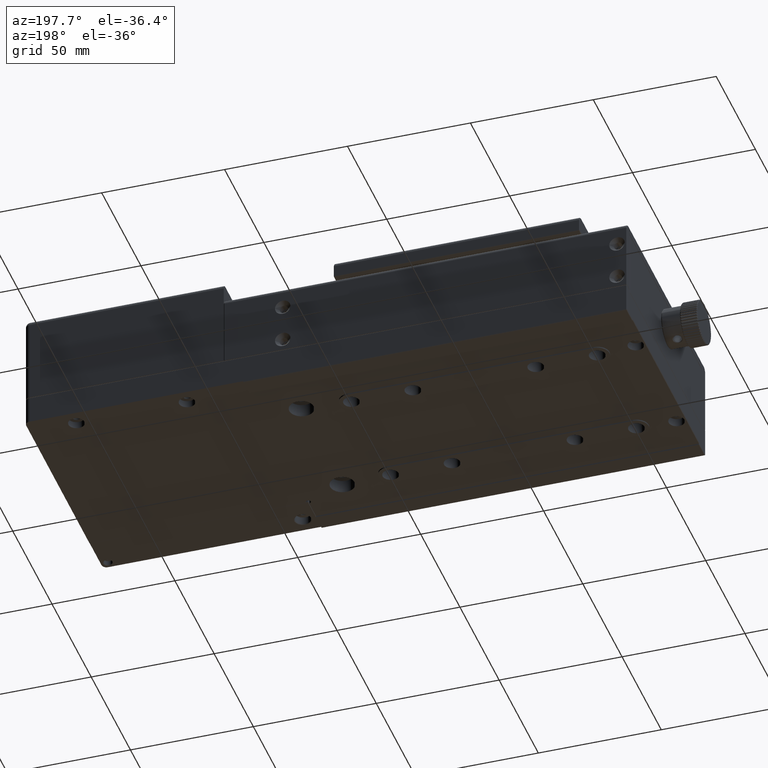
[diagram: clean part render]
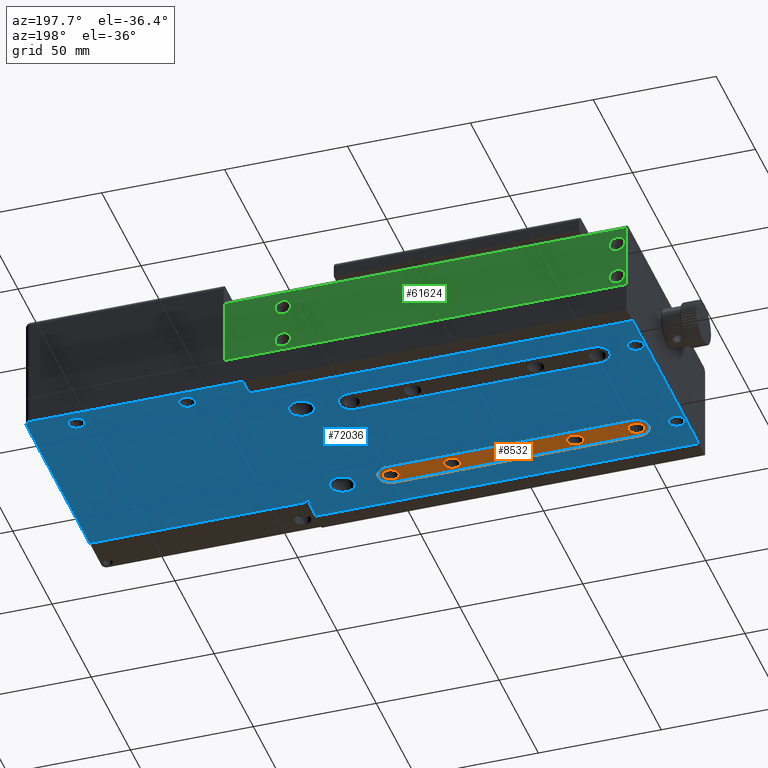
[diagram: same view with three faces highlighted in distinct colors, each labeled with its STEP entity id]
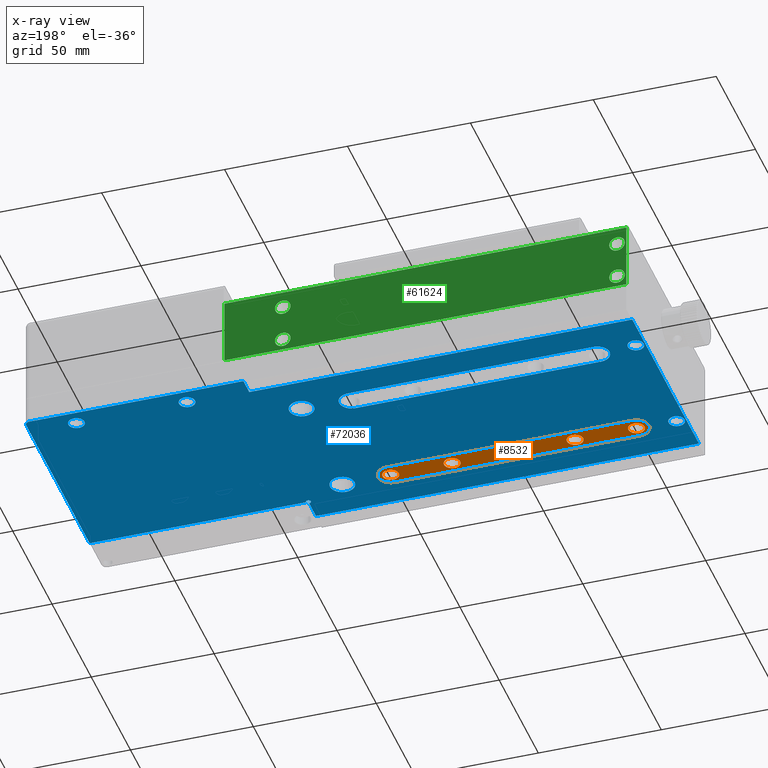
[diagram: x-ray of the same camera — body ghosted, the three highlighted faces saturated]
A machine part, auxiliary view with three faces highlighted in distinct colors.
The next image is the same camera in x-ray (body ghosted, the three faces saturated) — at least one of them is partly hidden behind the body in this view.
Their STEP definitions:

[orange] entity #8532 — the highlighted planar face has unit normal (0, 0, -1).
#572 = FACE_BOUND ( 'NONE', #5818, .T. ) ;
#2161 = CARTESIAN_POINT ( 'NONE',  ( -145.6607912002899923, -15.00575141257550094, -5.000000000000000000 ) ) ;
#2681 = ORIENTED_EDGE ( 'NONE', *, *, #47305, .F. ) ;
#3518 = DIRECTION ( 'NONE',  ( 0.000000000000000000, 0.000000000000000000, -1.000000000000000000 ) ) ;
#4045 = VERTEX_POINT ( 'NONE', #7858 ) ;
#5338 = FACE_BOUND ( 'NONE', #51825, .T. ) ;
#5442 = EDGE_CURVE ( 'NONE', #21860, #38430, #61975, .T. ) ;
#5818 = EDGE_LOOP ( 'NONE', ( #55989, #16234 ) ) ;
#5910 = EDGE_CURVE ( 'NONE', #47031, #4045, #45668, .T. ) ;
#6084 = CARTESIAN_POINT ( 'NONE',  ( -77.26079120029010028, -15.00575141257550094, -5.000000000000000000 ) ) ;
#6204 = CARTESIAN_POINT ( 'NONE',  ( -123.9607912002900036, -15.00575141257550094, -5.000000000000000000 ) ) ;
#6422 = CARTESIAN_POINT ( 'NONE',  ( -43.96079120029010312, -15.00575141257550094, -5.000000000000000000 ) ) ;
#6906 = CARTESIAN_POINT ( 'NONE',  ( -48.96079120029010312, -20.00575141257549916, -5.000000000000000000 ) ) ;
#7356 = EDGE_CURVE ( 'NONE', #27232, #14431, #15425, .T. ) ;
#7370 = CARTESIAN_POINT ( 'NONE',  ( -127.2607912002899866, -15.00575141257550094, -5.000000000000000000 ) ) ;
#7858 = CARTESIAN_POINT ( 'NONE',  ( -152.2607912002899866, -15.00575141257550094, -5.000000000000000000 ) ) ;
#8532 = ADVANCED_FACE ( 'NONE', ( #572, #11193, #5338, #10832, #67914 ), #51415, .T. ) ;
#9310 = ORIENTED_EDGE ( 'NONE', *, *, #52601, .T. ) ;
#9331 = AXIS2_PLACEMENT_3D ( 'NONE', #53234, #37115, #32367 ) ;
#10832 = FACE_BOUND ( 'NONE', #42816, .T. ) ;
#10947 = CARTESIAN_POINT ( 'NONE',  ( -148.9607912002899752, -15.00575141257550094, -5.000000000000000000 ) ) ;
#11106 = VERTEX_POINT ( 'NONE', #56538 ) ;
#11193 = FACE_BOUND ( 'NONE', #58707, .T. ) ;
#11863 = ORIENTED_EDGE ( 'NONE', *, *, #42855, .F. ) ;
#13083 = DIRECTION ( 'NONE',  ( 0.000000000000000000, 0.000000000000000000, -1.000000000000000000 ) ) ;
#13720 = CIRCLE ( 'NONE', #14894, 4.999999999999997335 ) ;
#13845 = CARTESIAN_POINT ( 'NONE',  ( -45.66079120029010596, -15.00575141257550094, -5.000000000000000000 ) ) ;
#14431 = VERTEX_POINT ( 'NONE', #38433 ) ;
#14894 = AXIS2_PLACEMENT_3D ( 'NONE', #64780, #66949, #26719 ) ;
#15425 = CIRCLE ( 'NONE', #34126, 3.299999999999997158 ) ;
#16234 = ORIENTED_EDGE ( 'NONE', *, *, #36578, .F. ) ;
#16283 = DIRECTION ( 'NONE',  ( 1.000000000000000000, -2.775557561562890365E-16, 0.000000000000000000 ) ) ;
#16661 = LINE ( 'NONE', #32769, #71688 ) ;
#17094 = CARTESIAN_POINT ( 'NONE',  ( -123.9607912002900036, -15.00575141257550094, -5.000000000000000000 ) ) ;
#17841 = CARTESIAN_POINT ( 'NONE',  ( -148.9607912002899752, -10.00575141257546008, -5.000000000000000000 ) ) ;
#18857 = AXIS2_PLACEMENT_3D ( 'NONE', #64183, #69327, #19574 ) ;
#19185 = DIRECTION ( 'NONE',  ( -1.000000000000000000, 0.000000000000000000, 0.000000000000000000 ) ) ;
#19574 = DIRECTION ( 'NONE',  ( -1.000000000000000000, 0.000000000000000000, 0.000000000000000000 ) ) ;
#21591 = DIRECTION ( 'NONE',  ( -1.000000000000000000, 0.000000000000000000, 0.000000000000000000 ) ) ;
#21860 = VERTEX_POINT ( 'NONE', #7370 ) ;
#22833 = ORIENTED_EDGE ( 'NONE', *, *, #41723, .T. ) ;
#23105 = ORIENTED_EDGE ( 'NONE', *, *, #27687, .F. ) ;
#23181 = CARTESIAN_POINT ( 'NONE',  ( -48.96079120029010312, -15.00575141257550094, -5.000000000000000000 ) ) ;
#23264 = CARTESIAN_POINT ( 'NONE',  ( -148.9607912002899752, -15.00575141257550094, -5.000000000000000000 ) ) ;
#24437 = CARTESIAN_POINT ( 'NONE',  ( -48.96079120029010312, -15.00575141257550094, -5.000000000000000000 ) ) ;
#24933 = LINE ( 'NONE', #30026, #59473 ) ;
#24999 = VERTEX_POINT ( 'NONE', #6422 ) ;
#26719 = DIRECTION ( 'NONE',  ( -1.000000000000000000, 0.000000000000000000, 0.000000000000000000 ) ) ;
#26770 = EDGE_CURVE ( 'NONE', #71446, #58588, #24933, .T. ) ;
#26943 = CIRCLE ( 'NONE', #51478, 4.999999999999997335 ) ;
#27232 = VERTEX_POINT ( 'NONE', #13845 ) ;
#27441 = DIRECTION ( 'NONE',  ( 0.000000000000000000, 0.000000000000000000, -1.000000000000000000 ) ) ;
#27687 = EDGE_CURVE ( 'NONE', #40221, #29126, #32738, .T. ) ;
#28250 = CIRCLE ( 'NONE', #36431, 3.299999999999997158 ) ;
#28402 = AXIS2_PLACEMENT_3D ( 'NONE', #23181, #45472, #60518 ) ;
#28453 = DIRECTION ( 'NONE',  ( -1.000000000000000000, 0.000000000000000000, 0.000000000000000000 ) ) ;
#28538 = DIRECTION ( 'NONE',  ( 0.000000000000000000, 0.000000000000000000, -1.000000000000000000 ) ) ;
#29114 = DIRECTION ( 'NONE',  ( 0.000000000000000000, 0.000000000000000000, -1.000000000000000000 ) ) ;
#29126 = VERTEX_POINT ( 'NONE', #6084 ) ;
#30026 = CARTESIAN_POINT ( 'NONE',  ( -148.9607912002899752, -20.00575141257549916, -5.000000000000000000 ) ) ;
#30386 = DIRECTION ( 'NONE',  ( -1.000000000000000000, 0.000000000000000000, 0.000000000000000000 ) ) ;
#30501 = CARTESIAN_POINT ( 'NONE',  ( -148.9607912002899752, -15.00575141257550094, -5.000000000000000000 ) ) ;
#30994 = DIRECTION ( 'NONE',  ( -1.000000000000000000, 0.000000000000000000, 0.000000000000000000 ) ) ;
#31944 = ORIENTED_EDGE ( 'NONE', *, *, #47600, .T. ) ;
#32209 = AXIS2_PLACEMENT_3D ( 'NONE', #30501, #47328, #19185 ) ;
#32367 = DIRECTION ( 'NONE',  ( -1.000000000000000000, 0.000000000000000000, 0.000000000000000000 ) ) ;
#32430 = DIRECTION ( 'NONE',  ( -1.000000000000000000, 0.000000000000000000, 0.000000000000000000 ) ) ;
#32738 = CIRCLE ( 'NONE', #9331, 3.299999999999997158 ) ;
#32769 = CARTESIAN_POINT ( 'NONE',  ( -148.9607912002899752, -10.00575141257546008, -5.000000000000000000 ) ) ;
#34126 = AXIS2_PLACEMENT_3D ( 'NONE', #70137, #3518, #32430 ) ;
#34288 = DIRECTION ( 'NONE',  ( 0.000000000000000000, 0.000000000000000000, -1.000000000000000000 ) ) ;
#36431 = AXIS2_PLACEMENT_3D ( 'NONE', #10947, #27441, #21591 ) ;
#36578 = EDGE_CURVE ( 'NONE', #14431, #27232, #50587, .T. ) ;
#37115 = DIRECTION ( 'NONE',  ( 0.000000000000000000, 0.000000000000000000, -1.000000000000000000 ) ) ;
#37610 = CARTESIAN_POINT ( 'NONE',  ( -70.66079120029010596, -15.00575141257550094, -5.000000000000000000 ) ) ;
#38248 = CARTESIAN_POINT ( 'NONE',  ( -73.96079120029010312, -15.00575141257550094, -5.000000000000000000 ) ) ;
#38430 = VERTEX_POINT ( 'NONE', #59995 ) ;
#38433 = CARTESIAN_POINT ( 'NONE',  ( -52.26079120029010028, -15.00575141257550094, -5.000000000000000000 ) ) ;
#40221 = VERTEX_POINT ( 'NONE', #37610 ) ;
#40233 = CIRCLE ( 'NONE', #32209, 5.000000000000004441 ) ;
#40663 = EDGE_CURVE ( 'NONE', #29126, #40221, #65360, .T. ) ;
#40680 = EDGE_LOOP ( 'NONE', ( #59256, #31944, #22833, #9310, #69898 ) ) ;
#41723 = EDGE_CURVE ( 'NONE', #11106, #24999, #26943, .T. ) ;
#42816 = EDGE_LOOP ( 'NONE', ( #23105, #60812 ) ) ;
#42855 = EDGE_CURVE ( 'NONE', #4045, #47031, #28250, .T. ) ;
#43008 = DIRECTION ( 'NONE',  ( 0.000000000000000000, 0.000000000000000000, -1.000000000000000000 ) ) ;
#44474 = AXIS2_PLACEMENT_3D ( 'NONE', #6204, #28538, #50854 ) ;
#44747 = AXIS2_PLACEMENT_3D ( 'NONE', #17094, #34288, #28453 ) ;
#45472 = DIRECTION ( 'NONE',  ( 0.000000000000000000, 0.000000000000000000, -1.000000000000000000 ) ) ;
#45668 = CIRCLE ( 'NONE', #18857, 3.299999999999997158 ) ;
#47031 = VERTEX_POINT ( 'NONE', #2161 ) ;
#47305 = EDGE_CURVE ( 'NONE', #38430, #21860, #48244, .T. ) ;
#47328 = DIRECTION ( 'NONE',  ( 0.000000000000000000, 0.000000000000000000, -1.000000000000000000 ) ) ;
#47600 = EDGE_CURVE ( 'NONE', #48525, #11106, #16661, .T. ) ;
#48244 = CIRCLE ( 'NONE', #44747, 3.300000000000011369 ) ;
#48525 = VERTEX_POINT ( 'NONE', #17841 ) ;
#50587 = CIRCLE ( 'NONE', #28402, 3.299999999999997158 ) ;
#50854 = DIRECTION ( 'NONE',  ( -1.000000000000000000, 0.000000000000000000, 0.000000000000000000 ) ) ;
#51415 = PLANE ( 'NONE',  #55028 ) ;
#51478 = AXIS2_PLACEMENT_3D ( 'NONE', #24437, #13083, #30994 ) ;
#51825 = EDGE_LOOP ( 'NONE', ( #53661, #11863 ) ) ;
#52601 = EDGE_CURVE ( 'NONE', #24999, #71446, #13720, .T. ) ;
#53234 = CARTESIAN_POINT ( 'NONE',  ( -73.96079120029010312, -15.00575141257550094, -5.000000000000000000 ) ) ;
#53661 = ORIENTED_EDGE ( 'NONE', *, *, #5910, .F. ) ;
#55028 = AXIS2_PLACEMENT_3D ( 'NONE', #23264, #29114, #72296 ) ;
#55989 = ORIENTED_EDGE ( 'NONE', *, *, #7356, .F. ) ;
#56538 = CARTESIAN_POINT ( 'NONE',  ( -48.96079120029010312, -10.00575141257547962, -5.000000000000000000 ) ) ;
#56763 = CARTESIAN_POINT ( 'NONE',  ( -148.9607912002899752, -20.00575141257549916, -5.000000000000000000 ) ) ;
#57803 = ORIENTED_EDGE ( 'NONE', *, *, #5442, .F. ) ;
#58588 = VERTEX_POINT ( 'NONE', #56763 ) ;
#58707 = EDGE_LOOP ( 'NONE', ( #2681, #57803 ) ) ;
#59256 = ORIENTED_EDGE ( 'NONE', *, *, #70751, .T. ) ;
#59473 = VECTOR ( 'NONE', #30386, 1000.000000000000000 ) ;
#59523 = AXIS2_PLACEMENT_3D ( 'NONE', #38248, #43008, #65328 ) ;
#59995 = CARTESIAN_POINT ( 'NONE',  ( -120.6607912002900065, -15.00575141257550094, -5.000000000000000000 ) ) ;
#60518 = DIRECTION ( 'NONE',  ( -1.000000000000000000, 0.000000000000000000, 0.000000000000000000 ) ) ;
#60812 = ORIENTED_EDGE ( 'NONE', *, *, #40663, .F. ) ;
#61975 = CIRCLE ( 'NONE', #44474, 3.300000000000011369 ) ;
#64183 = CARTESIAN_POINT ( 'NONE',  ( -148.9607912002899752, -15.00575141257550094, -5.000000000000000000 ) ) ;
#64780 = CARTESIAN_POINT ( 'NONE',  ( -48.96079120029010312, -15.00575141257550094, -5.000000000000000000 ) ) ;
#65328 = DIRECTION ( 'NONE',  ( -1.000000000000000000, 0.000000000000000000, 0.000000000000000000 ) ) ;
#65360 = CIRCLE ( 'NONE', #59523, 3.299999999999997158 ) ;
#66949 = DIRECTION ( 'NONE',  ( 0.000000000000000000, 0.000000000000000000, -1.000000000000000000 ) ) ;
#67914 = FACE_OUTER_BOUND ( 'NONE', #40680, .T. ) ;
#69327 = DIRECTION ( 'NONE',  ( 0.000000000000000000, 0.000000000000000000, -1.000000000000000000 ) ) ;
#69898 = ORIENTED_EDGE ( 'NONE', *, *, #26770, .T. ) ;
#70137 = CARTESIAN_POINT ( 'NONE',  ( -48.96079120029010312, -15.00575141257550094, -5.000000000000000000 ) ) ;
#70751 = EDGE_CURVE ( 'NONE', #58588, #48525, #40233, .T. ) ;
#71446 = VERTEX_POINT ( 'NONE', #6906 ) ;
#71688 = VECTOR ( 'NONE', #16283, 1000.000000000000000 ) ;
#72296 = DIRECTION ( 'NONE',  ( 0.000000000000000000, -1.000000000000000000, 0.000000000000000000 ) ) ;

[blue] entity #72036 — the highlighted planar face has unit normal (0, 0, -1).
#290 = DIRECTION ( 'NONE',  ( 0.000000000000000000, 0.000000000000000000, -1.000000000000000000 ) ) ;
#370 = LINE ( 'NONE', #33310, #38080 ) ;
#1102 = CIRCLE ( 'NONE', #32660, 3.249999999999999556 ) ;
#1150 = CARTESIAN_POINT ( 'NONE',  ( -12.96079120029014042, -22.80575141257549987, -4.500000000000000000 ) ) ;
#1430 = ORIENTED_EDGE ( 'NONE', *, *, #39142, .F. ) ;
#1717 = DIRECTION ( 'NONE',  ( -1.000000000000000000, 0.000000000000000000, 0.000000000000000000 ) ) ;
#2078 = EDGE_CURVE ( 'NONE', #8837, #31264, #35640, .T. ) ;
#2158 = CARTESIAN_POINT ( 'NONE',  ( -28.96079120029009957, 35.99424858742454347, -4.500000000000000000 ) ) ;
#2431 = VECTOR ( 'NONE', #14072, 1000.000000000000000 ) ;
#2548 = CIRCLE ( 'NONE', #21135, 4.999999999999997335 ) ;
#3005 = DIRECTION ( 'NONE',  ( -1.000000000000000000, 0.000000000000000000, 0.000000000000000000 ) ) ;
#3339 = EDGE_CURVE ( 'NONE', #40353, #46669, #35911, .T. ) ;
#3416 = DIRECTION ( 'NONE',  ( 0.000000000000000000, 0.000000000000000000, -1.000000000000000000 ) ) ;
#3483 = AXIS2_PLACEMENT_3D ( 'NONE', #41867, #54547, #30900 ) ;
#3643 = EDGE_CURVE ( 'NONE', #50636, #46669, #370, .T. ) ;
#4209 = CARTESIAN_POINT ( 'NONE',  ( 15.28920879970989866, 53.49424858742450084, -4.500000000000000000 ) ) ;
#4240 = EDGE_CURVE ( 'NONE', #34663, #37832, #37367, .T. ) ;
#4475 = DIRECTION ( 'NONE',  ( -1.000000000000000000, 0.000000000000000000, 0.000000000000000000 ) ) ;
#4513 = VERTEX_POINT ( 'NONE', #58170 ) ;
#5206 = FACE_BOUND ( 'NONE', #43208, .T. ) ;
#5287 = CARTESIAN_POINT ( 'NONE',  ( 76.03920879970989688, -22.80575141257549987, -4.500000000000000000 ) ) ;
#5317 = CIRCLE ( 'NONE', #17022, 0.9999999999999991118 ) ;
#5545 = EDGE_LOOP ( 'NONE', ( #64815, #32088 ) ) ;
#5785 = ORIENTED_EDGE ( 'NONE', *, *, #59780, .F. ) ;
#5884 = VERTEX_POINT ( 'NONE', #14761 ) ;
#6016 = DIRECTION ( 'NONE',  ( 1.000000000000000000, -1.040834085586083887E-16, 0.000000000000000000 ) ) ;
#6117 = CARTESIAN_POINT ( 'NONE',  ( -164.9607912002900036, -16.00575141257549916, -4.500000000000000000 ) ) ;
#6172 = CARTESIAN_POINT ( 'NONE',  ( 12.03920879970988089, 53.49424858742450084, -4.500000000000000000 ) ) ;
#6303 = VERTEX_POINT ( 'NONE', #18753 ) ;
#7002 = DIRECTION ( 'NONE',  ( -1.000000000000000000, 0.000000000000000000, 0.000000000000000000 ) ) ;
#7023 = DIRECTION ( 'NONE',  ( 0.000000000000000000, 0.000000000000000000, -1.000000000000000000 ) ) ;
#7527 = ORIENTED_EDGE ( 'NONE', *, *, #21486, .F. ) ;
#7641 = AXIS2_PLACEMENT_3D ( 'NONE', #6172, #29228, #33629 ) ;
#8389 = DIRECTION ( 'NONE',  ( 0.000000000000000000, 0.000000000000000000, 1.000000000000000000 ) ) ;
#8400 = CIRCLE ( 'NONE', #37557, 5.000000000000004441 ) ;
#8837 = VERTEX_POINT ( 'NONE', #18411 ) ;
#8871 = CARTESIAN_POINT ( 'NONE',  ( -12.96079120029014042, -23.80575141257549632, -4.500000000000000000 ) ) ;
#9142 = ORIENTED_EDGE ( 'NONE', *, *, #54209, .T. ) ;
#9420 = CIRCLE ( 'NONE', #17608, 0.9999999999999991118 ) ;
#9553 = DIRECTION ( 'NONE',  ( 0.000000000000000000, 0.000000000000000000, 1.000000000000000000 ) ) ;
#9801 = AXIS2_PLACEMENT_3D ( 'NONE', #69690, #3416, #48063 ) ;
#9944 = AXIS2_PLACEMENT_3D ( 'NONE', #52001, #12506, #46890 ) ;
#10108 = CARTESIAN_POINT ( 'NONE',  ( -168.7607912002899866, -32.50575141257549916, -4.500000000000000000 ) ) ;
#10312 = VECTOR ( 'NONE', #10504, 1000.000000000000000 ) ;
#10323 = CARTESIAN_POINT ( 'NONE',  ( -164.9607912002900036, -16.00575141257549916, -4.500000000000000000 ) ) ;
#10504 = DIRECTION ( 'NONE',  ( -1.000000000000000000, 1.387778780781445922E-16, 0.000000000000000000 ) ) ;
#10952 = VERTEX_POINT ( 'NONE', #10108 ) ;
#11060 = FACE_OUTER_BOUND ( 'NONE', #68251, .T. ) ;
#11234 = CARTESIAN_POINT ( 'NONE',  ( -148.9607912002899752, 34.99424858742449373, -4.500000000000000000 ) ) ;
#11255 = CARTESIAN_POINT ( 'NONE',  ( -28.96079120029009957, -16.00575141257549916, -4.500000000000000000 ) ) ;
#11303 = CARTESIAN_POINT ( 'NONE',  ( -148.9607912002899752, -20.00575141257549916, -4.500000000000000000 ) ) ;
#11415 = CARTESIAN_POINT ( 'NONE',  ( -168.9607912002899752, 59.99424858742450084, -4.500000000000000000 ) ) ;
#11632 = EDGE_CURVE ( 'NONE', #24472, #5884, #5317, .T. ) ;
#11789 = CARTESIAN_POINT ( 'NONE',  ( 57.03920879970990399, 53.49424858742450084, -4.500000000000000000 ) ) ;
#11890 = CARTESIAN_POINT ( 'NONE',  ( -168.2107912002899752, 35.99424858742454347, -4.500000000000000000 ) ) ;
#11988 = CARTESIAN_POINT ( 'NONE',  ( -161.7107912002900036, 35.99424858742454347, -4.500000000000000000 ) ) ;
#12135 = CIRCLE ( 'NONE', #9801, 4.999999999999997335 ) ;
#12343 = CARTESIAN_POINT ( 'NONE',  ( 74.03920879970989688, 59.99424858742450084, -4.500000000000000000 ) ) ;
#12506 = DIRECTION ( 'NONE',  ( 0.000000000000000000, 0.000000000000000000, 1.000000000000000000 ) ) ;
#12568 = CARTESIAN_POINT ( 'NONE',  ( 12.03920879970988089, 53.49424858742450084, -4.500000000000000000 ) ) ;
#12754 = CARTESIAN_POINT ( 'NONE',  ( -48.96079120029010312, -10.00575141257547962, -4.500000000000000000 ) ) ;
#13214 = DIRECTION ( 'NONE',  ( -1.000000000000000000, 0.000000000000000000, 0.000000000000000000 ) ) ;
#13250 = CARTESIAN_POINT ( 'NONE',  ( -168.9607912002899752, 59.99424858742450084, -4.500000000000000000 ) ) ;
#13958 = LINE ( 'NONE', #34828, #66434 ) ;
#14072 = DIRECTION ( 'NONE',  ( -1.224646799147351975E-16, 1.000000000000000000, 0.000000000000000000 ) ) ;
#14324 = CARTESIAN_POINT ( 'NONE',  ( 53.78920879970990399, 53.49424858742450084, -4.500000000000000000 ) ) ;
#14761 = CARTESIAN_POINT ( 'NONE',  ( -13.96079120029013865, -22.80575141257549987, -4.500000000000000000 ) ) ;
#15143 = LINE ( 'NONE', #71509, #65561 ) ;
#15698 = CARTESIAN_POINT ( 'NONE',  ( -148.9607912002899752, -10.00575141257546008, -4.500000000000000000 ) ) ;
#16062 = DIRECTION ( 'NONE',  ( -1.000000000000000000, 0.000000000000000000, 0.000000000000000000 ) ) ;
#16086 = CIRCLE ( 'NONE', #60492, 3.250000000000002665 ) ;
#16183 = DIRECTION ( 'NONE',  ( 0.000000000000000000, -1.000000000000000000, 0.000000000000000000 ) ) ;
#17022 = AXIS2_PLACEMENT_3D ( 'NONE', #35210, #46185, #3005 ) ;
#17179 = LINE ( 'NONE', #55594, #66227 ) ;
#17532 = ORIENTED_EDGE ( 'NONE', *, *, #25874, .F. ) ;
#17608 = AXIS2_PLACEMENT_3D ( 'NONE', #1150, #23500, #7002 ) ;
#17756 = DIRECTION ( 'NONE',  ( 0.000000000000000000, 1.000000000000000000, 0.000000000000000000 ) ) ;
#18069 = VERTEX_POINT ( 'NONE', #11890 ) ;
#18411 = CARTESIAN_POINT ( 'NONE',  ( -23.96079120029010312, 35.99424858742454347, -4.500000000000000000 ) ) ;
#18456 = EDGE_CURVE ( 'NONE', #62795, #45612, #66193, .T. ) ;
#18753 = CARTESIAN_POINT ( 'NONE',  ( -48.96079120029010312, -20.00575141257549916, -4.500000000000000000 ) ) ;
#19025 = DIRECTION ( 'NONE',  ( -1.000000000000000000, 0.000000000000000000, 0.000000000000000000 ) ) ;
#19345 = VERTEX_POINT ( 'NONE', #34221 ) ;
#19521 = ORIENTED_EDGE ( 'NONE', *, *, #20493, .T. ) ;
#19825 = DIRECTION ( 'NONE',  ( -1.000000000000000000, 0.000000000000000000, 0.000000000000000000 ) ) ;
#20493 = EDGE_CURVE ( 'NONE', #68274, #57304, #16086, .T. ) ;
#20749 = DIRECTION ( 'NONE',  ( 0.000000000000000000, 0.000000000000000000, -1.000000000000000000 ) ) ;
#20816 = CARTESIAN_POINT ( 'NONE',  ( -168.2107912002899752, -16.00575141257549916, -4.500000000000000000 ) ) ;
#20963 = CIRCLE ( 'NONE', #44298, 3.250000000000002665 ) ;
#21135 = AXIS2_PLACEMENT_3D ( 'NONE', #70864, #20749, #43033 ) ;
#21318 = EDGE_CURVE ( 'NONE', #22994, #51450, #48923, .T. ) ;
#21486 = EDGE_CURVE ( 'NONE', #51450, #19345, #48851, .T. ) ;
#22160 = CARTESIAN_POINT ( 'NONE',  ( 57.03920879970990399, 53.49424858742450084, -4.500000000000000000 ) ) ;
#22332 = DIRECTION ( 'NONE',  ( -1.000000000000000000, 0.000000000000000000, 0.000000000000000000 ) ) ;
#22696 = DIRECTION ( 'NONE',  ( -1.000000000000000000, 0.000000000000000000, 0.000000000000000000 ) ) ;
#22994 = VERTEX_POINT ( 'NONE', #51038 ) ;
#23500 = DIRECTION ( 'NONE',  ( 0.000000000000000000, 0.000000000000000000, -1.000000000000000000 ) ) ;
#23689 = DIRECTION ( 'NONE',  ( 0.000000000000000000, 0.000000000000000000, -1.000000000000000000 ) ) ;
#23873 = EDGE_CURVE ( 'NONE', #10952, #66059, #35671, .T. ) ;
#24472 = VERTEX_POINT ( 'NONE', #8871 ) ;
#24804 = EDGE_CURVE ( 'NONE', #32782, #71462, #2548, .T. ) ;
#25169 = EDGE_CURVE ( 'NONE', #66059, #50636, #15143, .T. ) ;
#25234 = CIRCLE ( 'NONE', #55576, 4.999999999999997335 ) ;
#25805 = EDGE_CURVE ( 'NONE', #65092, #37269, #8400, .T. ) ;
#25874 = EDGE_CURVE ( 'NONE', #37269, #51504, #66198, .T. ) ;
#25904 = AXIS2_PLACEMENT_3D ( 'NONE', #58112, #69101, #63246 ) ;
#25921 = EDGE_CURVE ( 'NONE', #68567, #18069, #57426, .T. ) ;
#26267 = CARTESIAN_POINT ( 'NONE',  ( -11.96079120029013865, -22.80575141257549987, -4.500000000000000000 ) ) ;
#26563 = EDGE_LOOP ( 'NONE', ( #43401, #48103 ) ) ;
#26634 = ORIENTED_EDGE ( 'NONE', *, *, #3339, .F. ) ;
#26819 = PLANE ( 'NONE',  #71953 ) ;
#27000 = CARTESIAN_POINT ( 'NONE',  ( -148.9607912002899752, 29.99424858742450084, -4.500000000000000000 ) ) ;
#27064 = CARTESIAN_POINT ( 'NONE',  ( -148.9607912002899752, -10.00575141257546008, -4.500000000000000000 ) ) ;
#27091 = ORIENTED_EDGE ( 'NONE', *, *, #25921, .T. ) ;
#27249 = AXIS2_PLACEMENT_3D ( 'NONE', #54786, #290, #38331 ) ;
#27666 = LINE ( 'NONE', #45541, #27986 ) ;
#27986 = VECTOR ( 'NONE', #17756, 1000.000000000000000 ) ;
#28685 = DIRECTION ( 'NONE',  ( 0.000000000000000000, 0.000000000000000000, -1.000000000000000000 ) ) ;
#29025 = VERTEX_POINT ( 'NONE', #26267 ) ;
#29045 = DIRECTION ( 'NONE',  ( -1.000000000000000000, 0.000000000000000000, 0.000000000000000000 ) ) ;
#29228 = DIRECTION ( 'NONE',  ( 0.000000000000000000, 0.000000000000000000, -1.000000000000000000 ) ) ;
#29411 = CARTESIAN_POINT ( 'NONE',  ( -33.96079120029010312, -16.00575141257549916, -4.500000000000000000 ) ) ;
#29480 = CARTESIAN_POINT ( 'NONE',  ( -168.7607912002899866, 52.49424858742450084, -4.500000000000000000 ) ) ;
#29591 = EDGE_CURVE ( 'NONE', #30379, #29025, #50910, .T. ) ;
#29680 = DIRECTION ( 'NONE',  ( 0.000000000000000000, 0.000000000000000000, 1.000000000000000000 ) ) ;
#29892 = VECTOR ( 'NONE', #19825, 1000.000000000000000 ) ;
#30379 = VERTEX_POINT ( 'NONE', #5287 ) ;
#30556 = ORIENTED_EDGE ( 'NONE', *, *, #61620, .T. ) ;
#30900 = DIRECTION ( 'NONE',  ( -1.000000000000000000, 0.000000000000000000, 0.000000000000000000 ) ) ;
#31264 = VERTEX_POINT ( 'NONE', #62449 ) ;
#32088 = ORIENTED_EDGE ( 'NONE', *, *, #2078, .T. ) ;
#32313 = FACE_BOUND ( 'NONE', #71243, .T. ) ;
#32660 = AXIS2_PLACEMENT_3D ( 'NONE', #12568, #28685, #29045 ) ;
#32782 = VERTEX_POINT ( 'NONE', #55785 ) ;
#33310 = CARTESIAN_POINT ( 'NONE',  ( -12.96079120029014042, 52.49424858742450084, -4.500000000000000000 ) ) ;
#33569 = DIRECTION ( 'NONE',  ( 0.000000000000000000, 0.000000000000000000, -1.000000000000000000 ) ) ;
#33629 = DIRECTION ( 'NONE',  ( -1.000000000000000000, 0.000000000000000000, 0.000000000000000000 ) ) ;
#33660 = ORIENTED_EDGE ( 'NONE', *, *, #39996, .T. ) ;
#34221 = CARTESIAN_POINT ( 'NONE',  ( -148.9607912002899752, 39.99424858742450084, -4.500000000000000000 ) ) ;
#34448 = VECTOR ( 'NONE', #58576, 1000.000000000000000 ) ;
#34663 = VERTEX_POINT ( 'NONE', #34836 ) ;
#34828 = CARTESIAN_POINT ( 'NONE',  ( 126.0392087997099821, -32.50575141257549916, -4.500000000000000000 ) ) ;
#34836 = CARTESIAN_POINT ( 'NONE',  ( -23.96079120029010312, -16.00575141257549916, -4.500000000000000000 ) ) ;
#35210 = CARTESIAN_POINT ( 'NONE',  ( -12.96079120029014042, -22.80575141257549987, -4.500000000000000000 ) ) ;
#35243 = ORIENTED_EDGE ( 'NONE', *, *, #25169, .T. ) ;
#35640 = CIRCLE ( 'NONE', #9944, 5.000000000000000888 ) ;
#35671 = LINE ( 'NONE', #29480, #2431 ) ;
#35911 = LINE ( 'NONE', #13250, #29892 ) ;
#36237 = CARTESIAN_POINT ( 'NONE',  ( 76.03920879970989688, 59.99424858742450084, -4.500000000000000000 ) ) ;
#36418 = VECTOR ( 'NONE', #66921, 1000.000000000000000 ) ;
#37269 = VERTEX_POINT ( 'NONE', #15698 ) ;
#37367 = CIRCLE ( 'NONE', #3483, 5.000000000000000888 ) ;
#37557 = AXIS2_PLACEMENT_3D ( 'NONE', #67286, #38364, #16062 ) ;
#37668 = CARTESIAN_POINT ( 'NONE',  ( -12.96079120029014042, 59.99424858742450084, -4.500000000000000000 ) ) ;
#37775 = FACE_BOUND ( 'NONE', #43693, .T. ) ;
#37832 = VERTEX_POINT ( 'NONE', #29411 ) ;
#38080 = VECTOR ( 'NONE', #50861, 1000.000000000000000 ) ;
#38083 = EDGE_LOOP ( 'NONE', ( #57718, #41346 ) ) ;
#38331 = DIRECTION ( 'NONE',  ( 1.000000000000000000, 0.000000000000000000, 0.000000000000000000 ) ) ;
#38364 = DIRECTION ( 'NONE',  ( 0.000000000000000000, 0.000000000000000000, -1.000000000000000000 ) ) ;
#39142 = EDGE_CURVE ( 'NONE', #51504, #64525, #47627, .T. ) ;
#39329 = VERTEX_POINT ( 'NONE', #48850 ) ;
#39527 = ORIENTED_EDGE ( 'NONE', *, *, #25805, .F. ) ;
#39996 = EDGE_CURVE ( 'NONE', #18069, #68567, #57066, .T. ) ;
#40353 = VERTEX_POINT ( 'NONE', #12343 ) ;
#40487 = AXIS2_PLACEMENT_3D ( 'NONE', #11789, #7023, #62286 ) ;
#40724 = EDGE_CURVE ( 'NONE', #4513, #24472, #27666, .T. ) ;
#41153 = ORIENTED_EDGE ( 'NONE', *, *, #18456, .F. ) ;
#41346 = ORIENTED_EDGE ( 'NONE', *, *, #4240, .T. ) ;
#41867 = CARTESIAN_POINT ( 'NONE',  ( -28.96079120029009957, -16.00575141257549916, -4.500000000000000000 ) ) ;
#42848 = ORIENTED_EDGE ( 'NONE', *, *, #66947, .F. ) ;
#43033 = DIRECTION ( 'NONE',  ( -1.000000000000000000, 0.000000000000000000, 0.000000000000000000 ) ) ;
#43208 = EDGE_LOOP ( 'NONE', ( #19521, #9142 ) ) ;
#43401 = ORIENTED_EDGE ( 'NONE', *, *, #54585, .F. ) ;
#43693 = EDGE_LOOP ( 'NONE', ( #54941, #41153 ) ) ;
#44064 = ORIENTED_EDGE ( 'NONE', *, *, #3643, .T. ) ;
#44298 = AXIS2_PLACEMENT_3D ( 'NONE', #6117, #51834, #1717 ) ;
#44351 = FACE_BOUND ( 'NONE', #38083, .T. ) ;
#44790 = AXIS2_PLACEMENT_3D ( 'NONE', #11255, #9553, #66504 ) ;
#44894 = DIRECTION ( 'NONE',  ( -1.000000000000000000, 0.000000000000000000, 0.000000000000000000 ) ) ;
#45070 = CARTESIAN_POINT ( 'NONE',  ( -161.7107912002900036, -16.00575141257549916, -4.500000000000000000 ) ) ;
#45410 = DIRECTION ( 'NONE',  ( -1.000000000000000000, 0.000000000000000000, 0.000000000000000000 ) ) ;
#45541 = CARTESIAN_POINT ( 'NONE',  ( -12.96079120029014042, 59.99424858742450084, -4.500000000000000000 ) ) ;
#45612 = VERTEX_POINT ( 'NONE', #14324 ) ;
#45762 = EDGE_CURVE ( 'NONE', #37832, #34663, #52985, .T. ) ;
#45896 = LINE ( 'NONE', #68228, #51241 ) ;
#46185 = DIRECTION ( 'NONE',  ( 0.000000000000000000, 0.000000000000000000, -1.000000000000000000 ) ) ;
#46324 = EDGE_LOOP ( 'NONE', ( #59511, #7527, #55739, #61755, #60168 ) ) ;
#46669 = VERTEX_POINT ( 'NONE', #37668 ) ;
#46890 = DIRECTION ( 'NONE',  ( -1.000000000000000000, 0.000000000000000000, 0.000000000000000000 ) ) ;
#47627 = CIRCLE ( 'NONE', #64041, 4.999999999999997335 ) ;
#47712 = EDGE_CURVE ( 'NONE', #45612, #62795, #56488, .T. ) ;
#47961 = CARTESIAN_POINT ( 'NONE',  ( 8.789208799709868458, 53.49424858742450084, -4.500000000000000000 ) ) ;
#47972 = EDGE_CURVE ( 'NONE', #64525, #6303, #12135, .T. ) ;
#48063 = DIRECTION ( 'NONE',  ( -1.000000000000000000, 0.000000000000000000, 0.000000000000000000 ) ) ;
#48103 = ORIENTED_EDGE ( 'NONE', *, *, #65096, .F. ) ;
#48644 = CARTESIAN_POINT ( 'NONE',  ( -148.9607912002899752, 29.99424858742450084, -4.500000000000000000 ) ) ;
#48850 = CARTESIAN_POINT ( 'NONE',  ( 76.03920879970989688, 57.99424858742449373, -4.500000000000000000 ) ) ;
#48851 = CIRCLE ( 'NONE', #71062, 5.000000000000004441 ) ;
#48923 = LINE ( 'NONE', #27000, #10312 ) ;
#50311 = DIRECTION ( 'NONE',  ( -1.000000000000000000, 0.000000000000000000, 0.000000000000000000 ) ) ;
#50636 = VERTEX_POINT ( 'NONE', #55364 ) ;
#50861 = DIRECTION ( 'NONE',  ( 0.000000000000000000, 1.000000000000000000, 0.000000000000000000 ) ) ;
#50910 = LINE ( 'NONE', #63345, #69157 ) ;
#51038 = CARTESIAN_POINT ( 'NONE',  ( -48.96079120029010312, 29.99424858742450084, -4.500000000000000000 ) ) ;
#51118 = CARTESIAN_POINT ( 'NONE',  ( -48.96079120029010312, -15.00575141257550094, -4.500000000000000000 ) ) ;
#51241 = VECTOR ( 'NONE', #6016, 1000.000000000000000 ) ;
#51450 = VERTEX_POINT ( 'NONE', #48644 ) ;
#51504 = VERTEX_POINT ( 'NONE', #12754 ) ;
#51834 = DIRECTION ( 'NONE',  ( 0.000000000000000000, 0.000000000000000000, 1.000000000000000000 ) ) ;
#52001 = CARTESIAN_POINT ( 'NONE',  ( -28.96079120029009957, 35.99424858742454347, -4.500000000000000000 ) ) ;
#52635 = CARTESIAN_POINT ( 'NONE',  ( -43.96079120029010312, 34.99424858742449373, -4.500000000000000000 ) ) ;
#52985 = CIRCLE ( 'NONE', #44790, 5.000000000000000888 ) ;
#53423 = VERTEX_POINT ( 'NONE', #4209 ) ;
#53586 = EDGE_CURVE ( 'NONE', #19345, #32782, #45896, .T. ) ;
#53738 = AXIS2_PLACEMENT_3D ( 'NONE', #2158, #8389, #19025 ) ;
#54209 = EDGE_CURVE ( 'NONE', #57304, #68274, #20963, .T. ) ;
#54547 = DIRECTION ( 'NONE',  ( 0.000000000000000000, 0.000000000000000000, 1.000000000000000000 ) ) ;
#54585 = EDGE_CURVE ( 'NONE', #66779, #53423, #1102, .T. ) ;
#54786 = CARTESIAN_POINT ( 'NONE',  ( 74.03920879970989688, 57.99424858742449373, -4.500000000000000000 ) ) ;
#54941 = ORIENTED_EDGE ( 'NONE', *, *, #47712, .F. ) ;
#55364 = CARTESIAN_POINT ( 'NONE',  ( -12.96079120029014042, 52.49424858742450084, -4.500000000000000000 ) ) ;
#55576 = AXIS2_PLACEMENT_3D ( 'NONE', #60837, #65594, #4475 ) ;
#55594 = CARTESIAN_POINT ( 'NONE',  ( -148.9607912002899752, -20.00575141257549916, -4.500000000000000000 ) ) ;
#55603 = DIRECTION ( 'NONE',  ( 0.000000000000000000, 0.000000000000000000, 1.000000000000000000 ) ) ;
#55739 = ORIENTED_EDGE ( 'NONE', *, *, #21318, .F. ) ;
#55785 = CARTESIAN_POINT ( 'NONE',  ( -48.96079120029010312, 39.99424858742450084, -4.500000000000000000 ) ) ;
#56488 = CIRCLE ( 'NONE', #57652, 3.250000000000002665 ) ;
#56959 = ORIENTED_EDGE ( 'NONE', *, *, #11632, .F. ) ;
#57066 = CIRCLE ( 'NONE', #67633, 3.250000000000002665 ) ;
#57138 = DIRECTION ( 'NONE',  ( -1.000000000000000000, 0.000000000000000000, 0.000000000000000000 ) ) ;
#57304 = VERTEX_POINT ( 'NONE', #45070 ) ;
#57426 = CIRCLE ( 'NONE', #25904, 3.250000000000002665 ) ;
#57652 = AXIS2_PLACEMENT_3D ( 'NONE', #22160, #67154, #50311 ) ;
#57718 = ORIENTED_EDGE ( 'NONE', *, *, #45762, .T. ) ;
#57833 = EDGE_CURVE ( 'NONE', #31264, #8837, #60769, .T. ) ;
#57846 = LINE ( 'NONE', #36237, #34448 ) ;
#57935 = ORIENTED_EDGE ( 'NONE', *, *, #67885, .T. ) ;
#58112 = CARTESIAN_POINT ( 'NONE',  ( -164.9607912002900036, 35.99424858742454347, -4.500000000000000000 ) ) ;
#58170 = CARTESIAN_POINT ( 'NONE',  ( -12.96079120029014042, -32.50575141257549916, -4.500000000000000000 ) ) ;
#58576 = DIRECTION ( 'NONE',  ( 0.000000000000000000, -1.000000000000000000, 0.000000000000000000 ) ) ;
#58638 = ORIENTED_EDGE ( 'NONE', *, *, #47972, .F. ) ;
#58816 = ORIENTED_EDGE ( 'NONE', *, *, #40724, .F. ) ;
#59511 = ORIENTED_EDGE ( 'NONE', *, *, #53586, .F. ) ;
#59780 = EDGE_CURVE ( 'NONE', #5884, #29025, #9420, .T. ) ;
#59804 = DIRECTION ( 'NONE',  ( 1.000000000000000000, 0.000000000000000000, 0.000000000000000000 ) ) ;
#60168 = ORIENTED_EDGE ( 'NONE', *, *, #24804, .F. ) ;
#60472 = FACE_BOUND ( 'NONE', #62367, .T. ) ;
#60492 = AXIS2_PLACEMENT_3D ( 'NONE', #10323, #29680, #45410 ) ;
#60769 = CIRCLE ( 'NONE', #53738, 5.000000000000000888 ) ;
#60837 = CARTESIAN_POINT ( 'NONE',  ( -48.96079120029010312, 34.99424858742449373, -4.500000000000000000 ) ) ;
#61131 = CIRCLE ( 'NONE', #27249, 2.000000000000001776 ) ;
#61620 = EDGE_CURVE ( 'NONE', #40353, #39329, #61131, .T. ) ;
#61755 = ORIENTED_EDGE ( 'NONE', *, *, #72037, .F. ) ;
#62203 = CARTESIAN_POINT ( 'NONE',  ( -164.9607912002900036, 35.99424858742454347, -4.500000000000000000 ) ) ;
#62286 = DIRECTION ( 'NONE',  ( -1.000000000000000000, 0.000000000000000000, 0.000000000000000000 ) ) ;
#62367 = EDGE_LOOP ( 'NONE', ( #33660, #27091 ) ) ;
#62449 = CARTESIAN_POINT ( 'NONE',  ( -33.96079120029010312, 35.99424858742454347, -4.500000000000000000 ) ) ;
#62535 = CIRCLE ( 'NONE', #7641, 3.249999999999999556 ) ;
#62795 = VERTEX_POINT ( 'NONE', #66368 ) ;
#63246 = DIRECTION ( 'NONE',  ( -1.000000000000000000, 0.000000000000000000, 0.000000000000000000 ) ) ;
#63345 = CARTESIAN_POINT ( 'NONE',  ( -168.9607912002899752, -22.80575141257549987, -4.500000000000000000 ) ) ;
#64041 = AXIS2_PLACEMENT_3D ( 'NONE', #51118, #33569, #67593 ) ;
#64525 = VERTEX_POINT ( 'NONE', #66647 ) ;
#64815 = ORIENTED_EDGE ( 'NONE', *, *, #57833, .T. ) ;
#65092 = VERTEX_POINT ( 'NONE', #11303 ) ;
#65096 = EDGE_CURVE ( 'NONE', #53423, #66779, #62535, .T. ) ;
#65561 = VECTOR ( 'NONE', #59804, 1000.000000000000000 ) ;
#65594 = DIRECTION ( 'NONE',  ( 0.000000000000000000, 0.000000000000000000, -1.000000000000000000 ) ) ;
#65960 = FACE_BOUND ( 'NONE', #5545, .T. ) ;
#66059 = VERTEX_POINT ( 'NONE', #67139 ) ;
#66193 = CIRCLE ( 'NONE', #40487, 3.250000000000002665 ) ;
#66198 = LINE ( 'NONE', #27064, #36418 ) ;
#66227 = VECTOR ( 'NONE', #22332, 1000.000000000000000 ) ;
#66318 = DIRECTION ( 'NONE',  ( 0.000000000000000000, 0.000000000000000000, -1.000000000000000000 ) ) ;
#66368 = CARTESIAN_POINT ( 'NONE',  ( 60.28920879970989688, 53.49424858742450084, -4.500000000000000000 ) ) ;
#66408 = ORIENTED_EDGE ( 'NONE', *, *, #70042, .T. ) ;
#66434 = VECTOR ( 'NONE', #57138, 1000.000000000000000 ) ;
#66504 = DIRECTION ( 'NONE',  ( -1.000000000000000000, 0.000000000000000000, 0.000000000000000000 ) ) ;
#66647 = CARTESIAN_POINT ( 'NONE',  ( -43.96079120029010312, -15.00575141257550094, -4.500000000000000000 ) ) ;
#66779 = VERTEX_POINT ( 'NONE', #47961 ) ;
#66921 = DIRECTION ( 'NONE',  ( 1.000000000000000000, -2.775557561562890365E-16, 0.000000000000000000 ) ) ;
#66947 = EDGE_CURVE ( 'NONE', #6303, #65092, #17179, .T. ) ;
#67139 = CARTESIAN_POINT ( 'NONE',  ( -168.7607912002899866, 52.49424858742450084, -4.500000000000000000 ) ) ;
#67154 = DIRECTION ( 'NONE',  ( 0.000000000000000000, 0.000000000000000000, -1.000000000000000000 ) ) ;
#67286 = CARTESIAN_POINT ( 'NONE',  ( -148.9607912002899752, -15.00575141257550094, -4.500000000000000000 ) ) ;
#67455 = ORIENTED_EDGE ( 'NONE', *, *, #29591, .T. ) ;
#67593 = DIRECTION ( 'NONE',  ( -1.000000000000000000, 0.000000000000000000, 0.000000000000000000 ) ) ;
#67633 = AXIS2_PLACEMENT_3D ( 'NONE', #62203, #55603, #22696 ) ;
#67885 = EDGE_CURVE ( 'NONE', #4513, #10952, #13958, .T. ) ;
#68228 = CARTESIAN_POINT ( 'NONE',  ( -148.9607912002899752, 39.99424858742450084, -4.500000000000000000 ) ) ;
#68251 = EDGE_LOOP ( 'NONE', ( #30556, #66408, #67455, #5785, #56959, #58816, #57935, #71576, #35243, #44064, #26634 ) ) ;
#68274 = VERTEX_POINT ( 'NONE', #20816 ) ;
#68567 = VERTEX_POINT ( 'NONE', #11988 ) ;
#69101 = DIRECTION ( 'NONE',  ( 0.000000000000000000, 0.000000000000000000, 1.000000000000000000 ) ) ;
#69157 = VECTOR ( 'NONE', #13214, 1000.000000000000000 ) ;
#69690 = CARTESIAN_POINT ( 'NONE',  ( -48.96079120029010312, -15.00575141257550094, -4.500000000000000000 ) ) ;
#70042 = EDGE_CURVE ( 'NONE', #39329, #30379, #57846, .T. ) ;
#70864 = CARTESIAN_POINT ( 'NONE',  ( -48.96079120029010312, 34.99424858742449373, -4.500000000000000000 ) ) ;
#71062 = AXIS2_PLACEMENT_3D ( 'NONE', #11234, #23689, #44894 ) ;
#71083 = FACE_BOUND ( 'NONE', #46324, .T. ) ;
#71243 = EDGE_LOOP ( 'NONE', ( #17532, #39527, #42848, #58638, #1430 ) ) ;
#71462 = VERTEX_POINT ( 'NONE', #52635 ) ;
#71509 = CARTESIAN_POINT ( 'NONE',  ( 126.0392087997099821, 52.49424858742450084, -4.500000000000000000 ) ) ;
#71576 = ORIENTED_EDGE ( 'NONE', *, *, #23873, .T. ) ;
#71813 = FACE_BOUND ( 'NONE', #26563, .T. ) ;
#71953 = AXIS2_PLACEMENT_3D ( 'NONE', #11415, #66318, #16183 ) ;
#72036 = ADVANCED_FACE ( 'NONE', ( #71083, #60472, #5206, #65960, #44351, #32313, #71813, #37775, #11060 ), #26819, .T. ) ;
#72037 = EDGE_CURVE ( 'NONE', #71462, #22994, #25234, .T. ) ;

[green] entity #61624 — the highlighted planar face has unit normal (0, -1, 0).
#343 = DIRECTION ( 'NONE',  ( 0.000000000000000000, 1.000000000000000000, -3.728673554401470280E-16 ) ) ;
#1090 = DIRECTION ( 'NONE',  ( -1.000000000000000000, 0.000000000000000000, 0.000000000000000000 ) ) ;
#1119 = CARTESIAN_POINT ( 'NONE',  ( -5.160791200290139713, 59.99424858742460032, 7.200000000000000178 ) ) ;
#2638 = DIRECTION ( 'NONE',  ( -1.000000000000000000, 0.000000000000000000, 0.000000000000000000 ) ) ;
#2939 = VERTEX_POINT ( 'NONE', #8202 ) ;
#3119 = ORIENTED_EDGE ( 'NONE', *, *, #12997, .F. ) ;
#4669 = CARTESIAN_POINT ( 'NONE',  ( -168.9607912002899752, 59.99424858742460032, 36.50000000000000000 ) ) ;
#4826 = CIRCLE ( 'NONE', #64449, 3.150000000000003464 ) ;
#5155 = VECTOR ( 'NONE', #57525, 1000.000000000000000 ) ;
#5751 = FACE_BOUND ( 'NONE', #46097, .T. ) ;
#6158 = EDGE_CURVE ( 'NONE', #64004, #2939, #57374, .T. ) ;
#6297 = DIRECTION ( 'NONE',  ( -1.000000000000000000, 0.000000000000000000, 0.000000000000000000 ) ) ;
#7025 = LINE ( 'NONE', #58240, #5155 ) ;
#8202 = CARTESIAN_POINT ( 'NONE',  ( -168.1107912002899809, 59.99424858742460032, 12.00000000000000000 ) ) ;
#8767 = AXIS2_PLACEMENT_3D ( 'NONE', #32424, #70491, #59136 ) ;
#9722 = DIRECTION ( 'NONE',  ( -1.000000000000000000, -1.402885900802285989E-16, 1.402885900802285989E-16 ) ) ;
#10325 = VERTEX_POINT ( 'NONE', #44368 ) ;
#10419 = LINE ( 'NONE', #43724, #67627 ) ;
#10554 = EDGE_CURVE ( 'NONE', #10325, #28312, #7025, .T. ) ;
#12997 = EDGE_CURVE ( 'NONE', #40911, #56474, #18037, .T. ) ;
#13709 = CARTESIAN_POINT ( 'NONE',  ( -32.11079120029010170, 59.99424858742460032, 12.00000000000000000 ) ) ;
#16206 = ORIENTED_EDGE ( 'NONE', *, *, #10554, .T. ) ;
#16484 = CARTESIAN_POINT ( 'NONE',  ( -164.9607912002900036, 59.99424858742460032, 12.00000000000000000 ) ) ;
#17557 = DIRECTION ( 'NONE',  ( 0.000000000000000000, 1.000000000000000000, -3.728673554401470280E-16 ) ) ;
#17689 = VECTOR ( 'NONE', #66354, 1000.000000000000000 ) ;
#18037 = CIRCLE ( 'NONE', #19214, 3.150000000000003464 ) ;
#19214 = AXIS2_PLACEMENT_3D ( 'NONE', #35920, #52754, #2638 ) ;
#21201 = AXIS2_PLACEMENT_3D ( 'NONE', #40235, #17557, #1090 ) ;
#21425 = EDGE_CURVE ( 'NONE', #34174, #30196, #64082, .T. ) ;
#21725 = EDGE_CURVE ( 'NONE', #28312, #46103, #10419, .T. ) ;
#22315 = DIRECTION ( 'NONE',  ( -1.000000000000000000, 0.000000000000000000, 0.000000000000000000 ) ) ;
#22815 = LINE ( 'NONE', #44760, #17689 ) ;
#23184 = CARTESIAN_POINT ( 'NONE',  ( -168.7607912002899866, 59.99424858742460032, 34.50000000000000000 ) ) ;
#23764 = EDGE_CURVE ( 'NONE', #62877, #10325, #54317, .T. ) ;
#25967 = CIRCLE ( 'NONE', #66844, 3.150000000000003464 ) ;
#26181 = DIRECTION ( 'NONE',  ( 1.000000000000000000, 1.402885900802285989E-16, -1.402885900802285989E-16 ) ) ;
#26995 = CIRCLE ( 'NONE', #48030, 3.149999999999986144 ) ;
#27023 = FACE_BOUND ( 'NONE', #34236, .T. ) ;
#27751 = FACE_BOUND ( 'NONE', #28931, .T. ) ;
#28103 = FACE_BOUND ( 'NONE', #44295, .T. ) ;
#28312 = VERTEX_POINT ( 'NONE', #1119 ) ;
#28931 = EDGE_LOOP ( 'NONE', ( #48605, #60153 ) ) ;
#29866 = CARTESIAN_POINT ( 'NONE',  ( -25.81079120029010099, 59.99424858742460032, 12.00000000000000000 ) ) ;
#30196 = VERTEX_POINT ( 'NONE', #44525 ) ;
#31727 = EDGE_LOOP ( 'NONE', ( #39724, #48879, #65038, #16206 ) ) ;
#32424 = CARTESIAN_POINT ( 'NONE',  ( -164.9607912002900036, 59.99424858742460032, 27.50000000000000000 ) ) ;
#33216 = DIRECTION ( 'NONE',  ( -1.000000000000000000, -1.402885900802285989E-16, 0.000000000000000000 ) ) ;
#33493 = CARTESIAN_POINT ( 'NONE',  ( -168.7607912002899866, 59.99424858742460032, 7.200000000000000178 ) ) ;
#33664 = AXIS2_PLACEMENT_3D ( 'NONE', #51820, #39392, #61369 ) ;
#34174 = VERTEX_POINT ( 'NONE', #40409 ) ;
#34236 = EDGE_LOOP ( 'NONE', ( #3119, #67930 ) ) ;
#34847 = EDGE_CURVE ( 'NONE', #2939, #64004, #26995, .T. ) ;
#35031 = EDGE_CURVE ( 'NONE', #56474, #40911, #62090, .T. ) ;
#35321 = EDGE_CURVE ( 'NONE', #46103, #62877, #22815, .T. ) ;
#35920 = CARTESIAN_POINT ( 'NONE',  ( -28.96079120029009957, 59.99424858742460032, 12.00000000000000000 ) ) ;
#38036 = CARTESIAN_POINT ( 'NONE',  ( -25.81079120029010099, 59.99424858742469979, 27.50000000000000000 ) ) ;
#38791 = DIRECTION ( 'NONE',  ( -1.000000000000000000, 0.000000000000000000, 0.000000000000000000 ) ) ;
#39392 = DIRECTION ( 'NONE',  ( 0.000000000000000000, 1.000000000000000000, -3.728673554401470280E-16 ) ) ;
#39724 = ORIENTED_EDGE ( 'NONE', *, *, #21725, .T. ) ;
#40235 = CARTESIAN_POINT ( 'NONE',  ( -28.96079120029009957, 59.99424858742460032, 12.00000000000000000 ) ) ;
#40334 = CARTESIAN_POINT ( 'NONE',  ( -28.96079120029009957, 59.99424858742469979, 27.50000000000000000 ) ) ;
#40409 = CARTESIAN_POINT ( 'NONE',  ( -168.1107912002899809, 59.99424858742460032, 27.50000000000000000 ) ) ;
#40569 = ORIENTED_EDGE ( 'NONE', *, *, #48744, .F. ) ;
#40911 = VERTEX_POINT ( 'NONE', #13709 ) ;
#42349 = EDGE_CURVE ( 'NONE', #46682, #70583, #4826, .T. ) ;
#42793 = EDGE_CURVE ( 'NONE', #70583, #46682, #25967, .T. ) ;
#43724 = CARTESIAN_POINT ( 'NONE',  ( -168.9607912002899752, 59.99424858742460032, 7.200000000000000178 ) ) ;
#43836 = PLANE ( 'NONE',  #68136 ) ;
#44295 = EDGE_LOOP ( 'NONE', ( #55583, #52931 ) ) ;
#44368 = CARTESIAN_POINT ( 'NONE',  ( -5.160791200290139713, 59.99424858742469979, 34.50000000000000000 ) ) ;
#44525 = CARTESIAN_POINT ( 'NONE',  ( -161.8107912002899980, 59.99424858742460032, 27.50000000000000000 ) ) ;
#44664 = ORIENTED_EDGE ( 'NONE', *, *, #21425, .F. ) ;
#44760 = CARTESIAN_POINT ( 'NONE',  ( -168.7607912002899866, 59.99424858742460032, 36.50000000000000000 ) ) ;
#44914 = FACE_OUTER_BOUND ( 'NONE', #31727, .T. ) ;
#46097 = EDGE_LOOP ( 'NONE', ( #44664, #40569 ) ) ;
#46103 = VERTEX_POINT ( 'NONE', #33493 ) ;
#46553 = DIRECTION ( 'NONE',  ( -1.000000000000000000, 0.000000000000000000, 0.000000000000000000 ) ) ;
#46682 = VERTEX_POINT ( 'NONE', #38036 ) ;
#48030 = AXIS2_PLACEMENT_3D ( 'NONE', #16484, #49413, #38791 ) ;
#48605 = ORIENTED_EDGE ( 'NONE', *, *, #34847, .F. ) ;
#48744 = EDGE_CURVE ( 'NONE', #30196, #34174, #63660, .T. ) ;
#48879 = ORIENTED_EDGE ( 'NONE', *, *, #35321, .T. ) ;
#49376 = CARTESIAN_POINT ( 'NONE',  ( -28.96079120029009957, 59.99424858742469979, 27.50000000000000000 ) ) ;
#49413 = DIRECTION ( 'NONE',  ( 0.000000000000000000, 1.000000000000000000, -3.728673554401470280E-16 ) ) ;
#49917 = CARTESIAN_POINT ( 'NONE',  ( -161.8107912002899980, 59.99424858742460032, 12.00000000000000000 ) ) ;
#51820 = CARTESIAN_POINT ( 'NONE',  ( -164.9607912002900036, 59.99424858742460032, 27.50000000000000000 ) ) ;
#52754 = DIRECTION ( 'NONE',  ( 0.000000000000000000, 1.000000000000000000, -3.728673554401470280E-16 ) ) ;
#52931 = ORIENTED_EDGE ( 'NONE', *, *, #42349, .F. ) ;
#54317 = LINE ( 'NONE', #71151, #62037 ) ;
#55583 = ORIENTED_EDGE ( 'NONE', *, *, #42793, .F. ) ;
#56474 = VERTEX_POINT ( 'NONE', #29866 ) ;
#57374 = CIRCLE ( 'NONE', #65511, 3.149999999999986144 ) ;
#57525 = DIRECTION ( 'NONE',  ( -1.402885900802285989E-16, -3.728673554401470280E-16, -1.000000000000000000 ) ) ;
#57900 = DIRECTION ( 'NONE',  ( 0.000000000000000000, 1.000000000000000000, -3.728673554401470280E-16 ) ) ;
#58240 = CARTESIAN_POINT ( 'NONE',  ( -5.160791200290139713, 59.99424858742469979, 36.50000000000000000 ) ) ;
#59136 = DIRECTION ( 'NONE',  ( -1.000000000000000000, 0.000000000000000000, 0.000000000000000000 ) ) ;
#60153 = ORIENTED_EDGE ( 'NONE', *, *, #6158, .F. ) ;
#61369 = DIRECTION ( 'NONE',  ( -1.000000000000000000, 0.000000000000000000, 0.000000000000000000 ) ) ;
#61568 = DIRECTION ( 'NONE',  ( 0.000000000000000000, 1.000000000000000000, -3.728673554401470280E-16 ) ) ;
#61624 = ADVANCED_FACE ( 'NONE', ( #27751, #5751, #28103, #27023, #44914 ), #43836, .F. ) ;
#62037 = VECTOR ( 'NONE', #26181, 1000.000000000000000 ) ;
#62090 = CIRCLE ( 'NONE', #21201, 3.150000000000003464 ) ;
#62877 = VERTEX_POINT ( 'NONE', #23184 ) ;
#63009 = CARTESIAN_POINT ( 'NONE',  ( -164.9607912002900036, 59.99424858742460032, 12.00000000000000000 ) ) ;
#63075 = CARTESIAN_POINT ( 'NONE',  ( -32.11079120029010170, 59.99424858742469979, 27.50000000000000000 ) ) ;
#63660 = CIRCLE ( 'NONE', #8767, 3.149999999999986144 ) ;
#64004 = VERTEX_POINT ( 'NONE', #49917 ) ;
#64082 = CIRCLE ( 'NONE', #33664, 3.149999999999986144 ) ;
#64449 = AXIS2_PLACEMENT_3D ( 'NONE', #40334, #57900, #46553 ) ;
#65038 = ORIENTED_EDGE ( 'NONE', *, *, #23764, .T. ) ;
#65511 = AXIS2_PLACEMENT_3D ( 'NONE', #63009, #61568, #6297 ) ;
#66161 = DIRECTION ( 'NONE',  ( 1.402885900802285989E-16, -1.000000000000000000, 3.728673554401470280E-16 ) ) ;
#66354 = DIRECTION ( 'NONE',  ( 1.782391016549329977E-17, 3.728673554401470280E-16, 1.000000000000000000 ) ) ;
#66844 = AXIS2_PLACEMENT_3D ( 'NONE', #49376, #343, #22315 ) ;
#67627 = VECTOR ( 'NONE', #9722, 1000.000000000000000 ) ;
#67930 = ORIENTED_EDGE ( 'NONE', *, *, #35031, .F. ) ;
#68136 = AXIS2_PLACEMENT_3D ( 'NONE', #4669, #66161, #33216 ) ;
#70491 = DIRECTION ( 'NONE',  ( 0.000000000000000000, 1.000000000000000000, -3.728673554401470280E-16 ) ) ;
#70583 = VERTEX_POINT ( 'NONE', #63075 ) ;
#71151 = CARTESIAN_POINT ( 'NONE',  ( -168.9607912002899752, 59.99424858742460032, 34.50000000000000000 ) ) ;